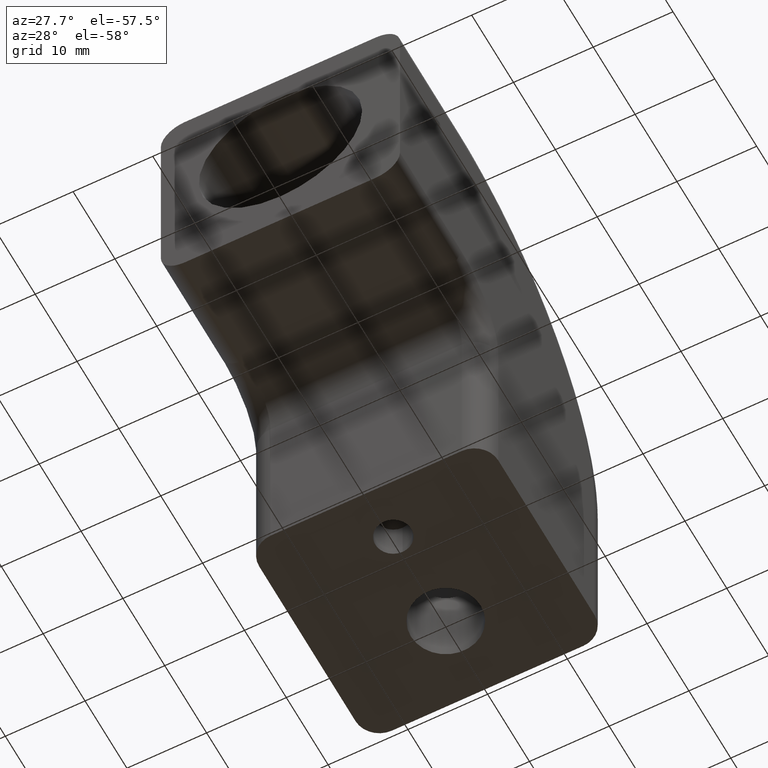
[diagram: clean part render]
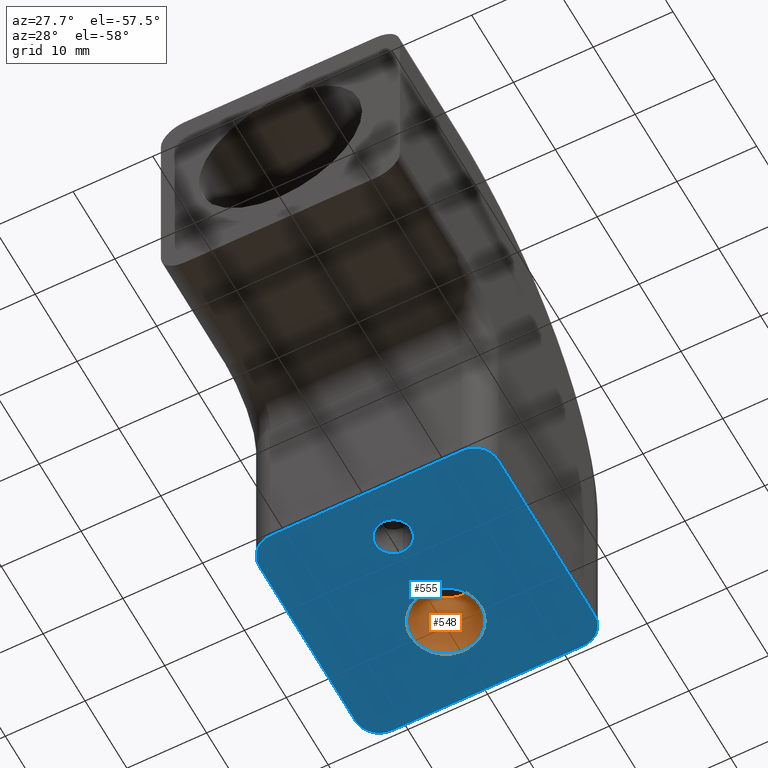
[diagram: same view with the hole feature highlighted: cylindrical wall and planar end face, labeled with their STEP entity ids]
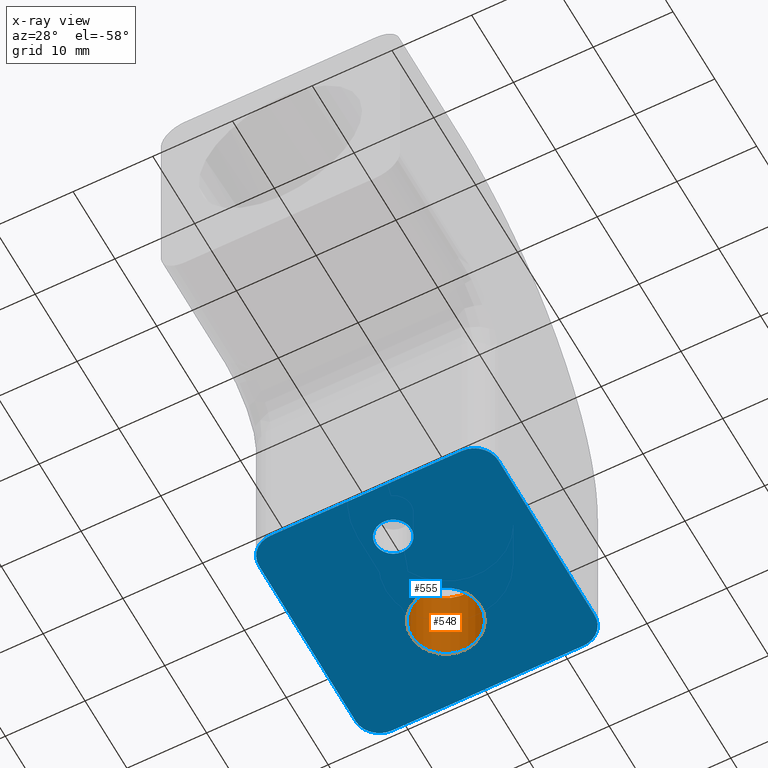
[diagram: x-ray of the same camera — body ghosted, the hole faces saturated]
A machine part, auxiliary view. The highlighted faces form one hole feature of diameter 8.75 mm: the cylindrical wall (entity #548, orange) and its adjacent planar end face (entity #555, blue) — they share a circular edge in the B-rep.
The next image is the same camera in x-ray (body ghosted, the hole faces saturated) — the bore reads through the body.
Wall:
#21=FACE_BOUND('',#168,.T.);
#109=CYLINDRICAL_SURFACE('',#594,4.375);
#130=FACE_OUTER_BOUND('',#167,.T.);
#167=EDGE_LOOP('',(#399));
#168=EDGE_LOOP('',(#400));
#210=CIRCLE('',#595,4.375);
#211=CIRCLE('',#596,4.375);
#254=VERTEX_POINT('',#883);
#255=VERTEX_POINT('',#885);
#311=EDGE_CURVE('',#254,#254,#210,.T.);
#312=EDGE_CURVE('',#255,#255,#211,.T.);
#399=ORIENTED_EDGE('',*,*,#311,.T.);
#400=ORIENTED_EDGE('',*,*,#312,.T.);
#548=ADVANCED_FACE('',(#130,#21),#109,.F.);
#594=AXIS2_PLACEMENT_3D('',#882,#691,#692);
#595=AXIS2_PLACEMENT_3D('',#884,#693,#694);
#596=AXIS2_PLACEMENT_3D('',#886,#695,#696);
#691=DIRECTION('center_axis',(0.,0.,1.));
#692=DIRECTION('ref_axis',(-1.,0.,0.));
#693=DIRECTION('center_axis',(0.,0.,-1.));
#694=DIRECTION('ref_axis',(-1.,0.,0.));
#695=DIRECTION('center_axis',(0.,0.,1.));
#696=DIRECTION('ref_axis',(-1.,0.,0.));
#882=CARTESIAN_POINT('Origin',(0.,0.,-9.39999999999964));
#883=CARTESIAN_POINT('',(4.375,0.,0.));
#884=CARTESIAN_POINT('Origin',(0.,0.,0.));
#885=CARTESIAN_POINT('',(4.375,0.,11.6000000000004));
#886=CARTESIAN_POINT('Origin',(-5.75584E-16,0.,11.6000000000004));
End face:
#26=FACE_BOUND('',#180,.T.);
#27=FACE_BOUND('',#181,.T.);
#45=LINE('',#923,#83);
#46=LINE('',#927,#84);
#47=LINE('',#931,#85);
#48=LINE('',#935,#86);
#83=VECTOR('',#733,23.);
#84=VECTOR('',#736,24.);
#85=VECTOR('',#739,23.);
#86=VECTOR('',#742,24.);
#137=FACE_OUTER_BOUND('',#179,.T.);
#179=EDGE_LOOP('',(#421,#422,#423,#424,#425,#426,#427,#428));
#180=EDGE_LOOP('',(#429));
#181=EDGE_LOOP('',(#430));
#210=CIRCLE('',#595,4.375);
#212=CIRCLE('',#599,2.25000000000022);
#220=CIRCLE('',#612,3.);
#221=CIRCLE('',#613,3.);
#222=CIRCLE('',#614,3.);
#223=CIRCLE('',#615,3.);
#254=VERTEX_POINT('',#883);
#256=VERTEX_POINT('',#889);
#269=VERTEX_POINT('',#921);
#270=VERTEX_POINT('',#922);
#271=VERTEX_POINT('',#924);
#272=VERTEX_POINT('',#926);
#273=VERTEX_POINT('',#928);
#274=VERTEX_POINT('',#930);
#275=VERTEX_POINT('',#932);
#276=VERTEX_POINT('',#934);
#311=EDGE_CURVE('',#254,#254,#210,.T.);
#313=EDGE_CURVE('',#256,#256,#212,.T.);
#327=EDGE_CURVE('',#269,#270,#45,.T.);
#328=EDGE_CURVE('',#271,#270,#220,.T.);
#329=EDGE_CURVE('',#271,#272,#46,.T.);
#330=EDGE_CURVE('',#272,#273,#221,.T.);
#331=EDGE_CURVE('',#274,#273,#47,.T.);
#332=EDGE_CURVE('',#274,#275,#222,.T.);
#333=EDGE_CURVE('',#276,#275,#48,.T.);
#334=EDGE_CURVE('',#269,#276,#223,.T.);
#421=ORIENTED_EDGE('',*,*,#327,.T.);
#422=ORIENTED_EDGE('',*,*,#328,.F.);
#423=ORIENTED_EDGE('',*,*,#329,.T.);
#424=ORIENTED_EDGE('',*,*,#330,.T.);
#425=ORIENTED_EDGE('',*,*,#331,.F.);
#426=ORIENTED_EDGE('',*,*,#332,.T.);
#427=ORIENTED_EDGE('',*,*,#333,.F.);
#428=ORIENTED_EDGE('',*,*,#334,.F.);
#429=ORIENTED_EDGE('',*,*,#313,.F.);
#430=ORIENTED_EDGE('',*,*,#311,.F.);
#533=PLANE('',#611);
#555=ADVANCED_FACE('',(#137,#26,#27),#533,.T.);
#595=AXIS2_PLACEMENT_3D('',#884,#693,#694);
#599=AXIS2_PLACEMENT_3D('',#890,#701,#702);
#611=AXIS2_PLACEMENT_3D('',#920,#731,#732);
#612=AXIS2_PLACEMENT_3D('',#925,#734,#735);
#613=AXIS2_PLACEMENT_3D('',#929,#737,#738);
#614=AXIS2_PLACEMENT_3D('',#933,#740,#741);
#615=AXIS2_PLACEMENT_3D('',#936,#743,#744);
#693=DIRECTION('center_axis',(0.,0.,-1.));
#694=DIRECTION('ref_axis',(-1.,0.,0.));
#701=DIRECTION('center_axis',(0.,0.,-1.));
#702=DIRECTION('ref_axis',(0.,-1.,0.));
#731=DIRECTION('center_axis',(0.,0.,-1.));
#732=DIRECTION('ref_axis',(-1.,0.,0.));
#733=DIRECTION('',(0.,-1.,0.));
#734=DIRECTION('center_axis',(0.,0.,1.));
#735=DIRECTION('ref_axis',(0.,-1.,0.));
#736=DIRECTION('',(-1.,0.,0.));
#737=DIRECTION('center_axis',(0.,0.,-1.));
#738=DIRECTION('ref_axis',(0.,-1.,0.));
#739=DIRECTION('',(0.,-1.,0.));
#740=DIRECTION('center_axis',(0.,0.,-1.));
#741=DIRECTION('ref_axis',(-1.,0.,0.));
#742=DIRECTION('',(-1.,0.,0.));
#743=DIRECTION('center_axis',(0.,0.,1.));
#744=DIRECTION('ref_axis',(1.,0.,0.));
#883=CARTESIAN_POINT('',(4.375,0.,0.));
#884=CARTESIAN_POINT('Origin',(0.,0.,0.));
#889=CARTESIAN_POINT('',(1.818414E-12,-10.294999999998,6.303869E-16));
#890=CARTESIAN_POINT('Origin',(1.818414E-12,-12.5449999999983,7.681597E-16));
#920=CARTESIAN_POINT('Origin',(15.,9.99500000000262,-6.120172E-16));
#921=CARTESIAN_POINT('',(15.,6.99500000000262,-4.283202E-16));
#922=CARTESIAN_POINT('',(15.,-16.0049999999974,9.800236E-16));
#923=CARTESIAN_POINT('',(15.,6.99500000000262,-4.283202E-16));
#924=CARTESIAN_POINT('',(12.,-19.0049999999974,1.163721E-15));
#925=CARTESIAN_POINT('Origin',(12.,-16.0049999999974,9.800236E-16));
#926=CARTESIAN_POINT('',(-12.,-19.0049999999974,1.163721E-15));
#927=CARTESIAN_POINT('',(12.,-19.0049999999974,1.163721E-15));
#928=CARTESIAN_POINT('',(-15.,-16.0049999999974,9.800236E-16));
#929=CARTESIAN_POINT('Origin',(-12.,-16.0049999999974,9.800236E-16));
#930=CARTESIAN_POINT('',(-15.,6.99500000000262,-4.283202E-16));
#931=CARTESIAN_POINT('',(-15.,6.99500000000262,-4.283202E-16));
#932=CARTESIAN_POINT('',(-12.,9.99500000000262,-6.120172E-16));
#933=CARTESIAN_POINT('Origin',(-12.,6.99500000000262,-4.283202E-16));
#934=CARTESIAN_POINT('',(12.,9.99500000000262,-6.120172E-16));
#935=CARTESIAN_POINT('',(12.,9.99500000000262,-6.120172E-16));
#936=CARTESIAN_POINT('Origin',(12.,6.99500000000262,-4.283202E-16));